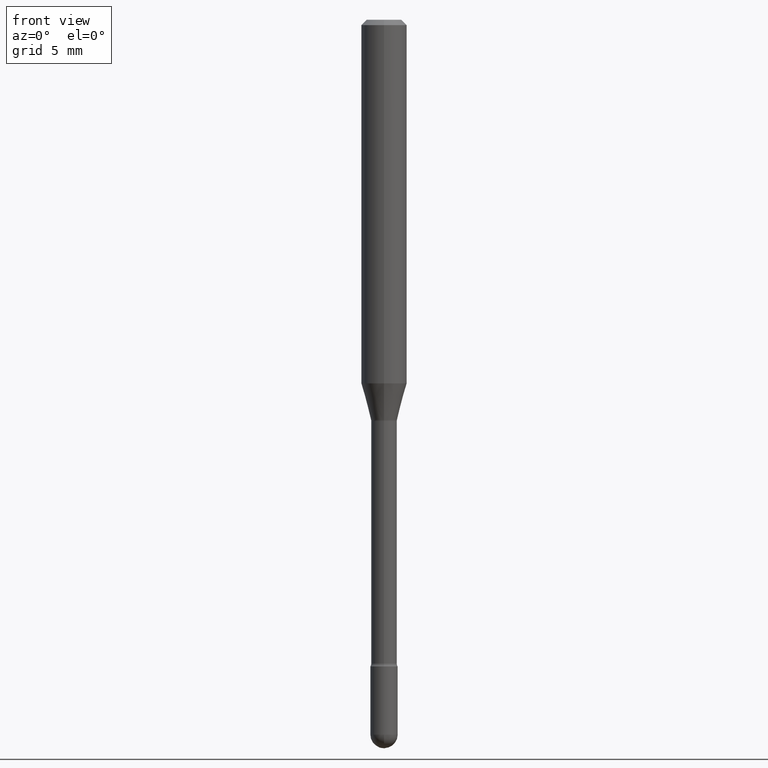
[diagram: clean part render]
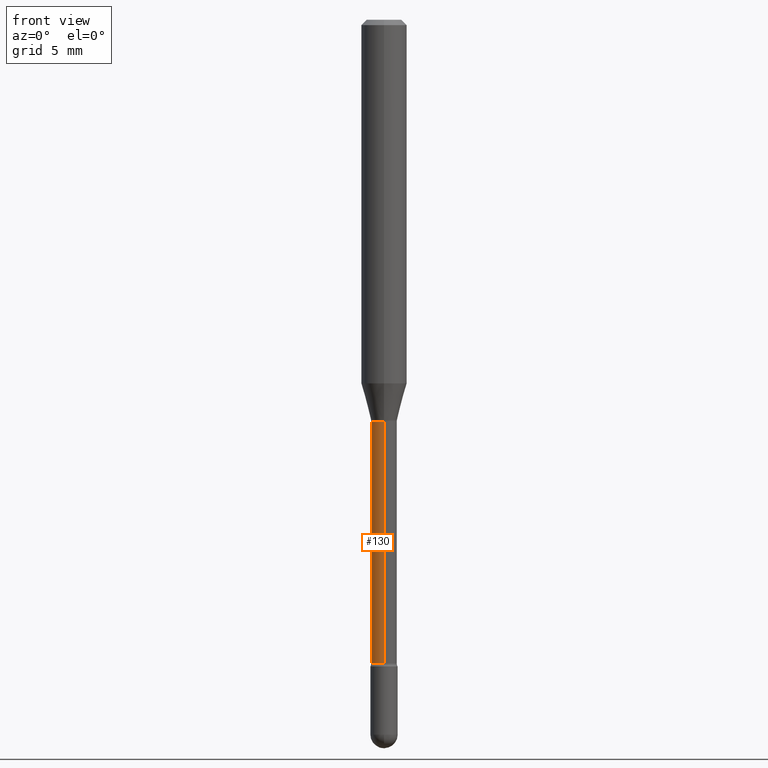
[diagram: same view with one face highlighted and labeled with its STEP entity id]
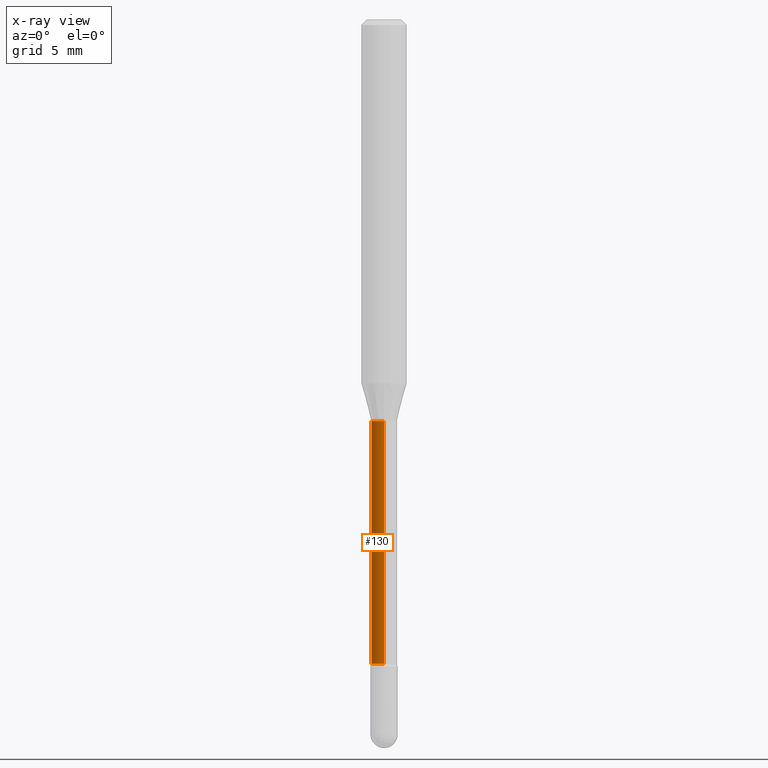
[diagram: x-ray of the same camera — body ghosted, the highlighted face saturated]
A machine part, front view. The second image highlights one B-rep face of the part: STEP entity #130.
The next image is the same camera in x-ray: the body ghosted, the highlighted face saturated — about 0% of this face is hidden behind the body in this view.
In plain terms, the highlighted cylindrical surface (edge-blend (fillet) strip) has radius 0.8954 mm, axis along (-0, 0, 1).
Its self-contained STEP definition (entity closure, byte-faithful):
#4 = EDGE_CURVE ( 'NONE', #212, #491, #198, .T. ) ;
#35 = DIRECTION ( 'NONE',  ( -2.445449487878579082E-29, 3.491509003757665551E-15, 1.000000000000000000 ) ) ;
#96 = DIRECTION ( 'NONE',  ( -2.445449487878579082E-29, 3.491509003757665551E-15, 1.000000000000000000 ) ) ;
#99 = CARTESIAN_POINT ( 'NONE',  ( 2.504663143554787774E-16, 0.03524999999999615247, -1.101974787463810834 ) ) ;
#114 = VERTEX_POINT ( 'NONE', #254 ) ;
#129 = CARTESIAN_POINT ( 'NONE',  ( 2.584599201327800595E-16, 0.03524999999999392508, -1.767098259685360606 ) ) ;
#130 = ADVANCED_FACE ( 'NONE', ( #263 ), #224, .T. ) ;
#148 = CIRCLE ( 'NONE', #474, 0.03525000000000008682 ) ;
#162 = CIRCLE ( 'NONE', #549, 0.03524999999999999661 ) ;
#163 = VECTOR ( 'NONE', #96, 39.37007874015748143 ) ;
#176 = DIRECTION ( 'NONE',  ( -2.445449487878579082E-29, 3.491509003757665551E-15, 1.000000000000000000 ) ) ;
#182 = VECTOR ( 'NONE', #235, 39.37007874015748143 ) ;
#198 = LINE ( 'NONE', #502, #182 ) ;
#207 = EDGE_CURVE ( 'NONE', #491, #114, #162, .T. ) ;
#212 = VERTEX_POINT ( 'NONE', #129 ) ;
#215 = DIRECTION ( 'NONE',  ( -6.982962677686266711E-15, -1.000000000000000000, 0.000000000000000000 ) ) ;
#217 = ORIENTED_EDGE ( 'NONE', *, *, #207, .F. ) ;
#224 = CYLINDRICAL_SURFACE ( 'NONE', #260, 0.03525000000000003825 ) ;
#235 = DIRECTION ( 'NONE',  ( -2.445449487878579082E-29, 3.491509003757665551E-15, 1.000000000000000000 ) ) ;
#239 = ORIENTED_EDGE ( 'NONE', *, *, #546, .T. ) ;
#244 = CARTESIAN_POINT ( 'NONE',  ( 4.321349534178693769E-29, -6.169839484215937915E-15, -1.767098259685360606 ) ) ;
#254 = CARTESIAN_POINT ( 'NONE',  ( -2.461494343884138594E-16, -0.03525000000000384076, -1.101974787463810612 ) ) ;
#260 = AXIS2_PLACEMENT_3D ( 'NONE', #389, #176, #478 ) ;
#263 = FACE_OUTER_BOUND ( 'NONE', #270, .T. ) ;
#270 = EDGE_LOOP ( 'NONE', ( #305, #239, #296, #217 ) ) ;
#284 = CARTESIAN_POINT ( 'NONE',  ( -2.461494343884411737E-16, -0.03525000000000003825, 6.011490912737039707E-16 ) ) ;
#296 = ORIENTED_EDGE ( 'NONE', *, *, #495, .T. ) ;
#305 = ORIENTED_EDGE ( 'NONE', *, *, #4, .F. ) ;
#371 = DIRECTION ( 'NONE',  ( -6.982962677686265133E-15, -1.000000000000000000, 3.874961693140799059E-15 ) ) ;
#389 = CARTESIAN_POINT ( 'NONE',  ( -1.169113584055446105E-44, 1.669184350826100908E-30, 4.780733988912460139E-16 ) ) ;
#416 = DIRECTION ( 'NONE',  ( -2.445449487878579082E-29, 3.491509003757665551E-15, 1.000000000000000000 ) ) ;
#446 = CARTESIAN_POINT ( 'NONE',  ( -2.461494343883982794E-16, -0.03525000000000625550, -1.767098259685360606 ) ) ;
#447 = LINE ( 'NONE', #284, #163 ) ;
#448 = CARTESIAN_POINT ( 'NONE',  ( 2.694823679658482289E-29, -3.847554892343835793E-15, -1.101974787463810834 ) ) ;
#474 = AXIS2_PLACEMENT_3D ( 'NONE', #244, #416, #215 ) ;
#478 = DIRECTION ( 'NONE',  ( -6.982962677686266711E-15, -1.000000000000000000, 3.491509003757667523E-15 ) ) ;
#491 = VERTEX_POINT ( 'NONE', #99 ) ;
#495 = EDGE_CURVE ( 'NONE', #519, #114, #447, .T. ) ;
#502 = CARTESIAN_POINT ( 'NONE',  ( 2.504663143554355873E-16, 0.03525000000000003825, 3.549977065087882051E-16 ) ) ;
#519 = VERTEX_POINT ( 'NONE', #446 ) ;
#546 = EDGE_CURVE ( 'NONE', #212, #519, #148, .T. ) ;
#549 = AXIS2_PLACEMENT_3D ( 'NONE', #448, #35, #371 ) ;